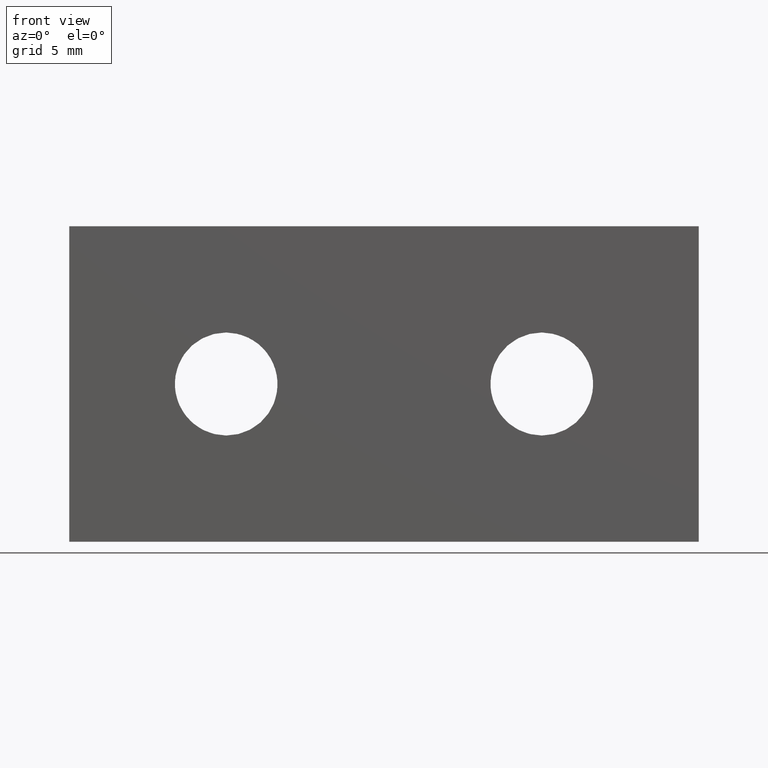
[diagram: clean part render]
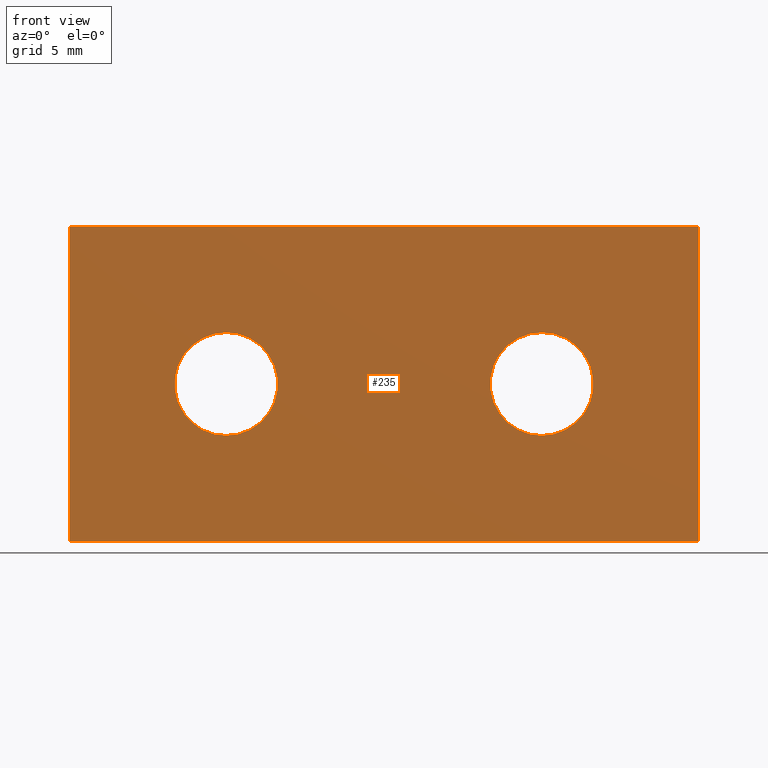
[diagram: same view with one face highlighted and labeled with its STEP entity id]
A machine part, front view. The second image highlights one B-rep face of the part: STEP entity #235.
In plain terms, the highlighted planar face has unit normal (-0, 1, 0).
Its self-contained STEP definition (entity closure, byte-faithful):
#4 = CIRCLE ( 'NONE', #272, 0.1285000000000000000 ) ;
#7 = VECTOR ( 'NONE', #101, 39.37007874015748100 ) ;
#8 = LINE ( 'NONE', #99, #7 ) ;
#10 = CIRCLE ( 'NONE', #273, 0.1285000000000000900 ) ;
#17 = VECTOR ( 'NONE', #158, 39.37007874015748100 ) ;
#59 = LINE ( 'NONE', #156, #17 ) ;
#76 = DIRECTION ( 'NONE',  ( -0.0000000000000000000, 1.000000000000000000, 0.0000000000000000000 ) ) ;
#77 = DIRECTION ( 'NONE',  ( -1.000000000000000000, -0.0000000000000000000, -0.0000000000000000000 ) ) ;
#79 = PLANE ( 'NONE',  #269 ) ;
#88 = CARTESIAN_POINT ( 'NONE',  ( -0.7850000000000001400, 0.3937007874015748300, 0.0000000000000000000 ) ) ;
#95 = DIRECTION ( 'NONE',  ( 0.0000000000000000000, -1.000000000000000000, -0.0000000000000000000 ) ) ;
#96 = VERTEX_POINT ( 'NONE', #192 ) ;
#97 = DIRECTION ( 'NONE',  ( 0.0000000000000000000, 0.0000000000000000000, 1.000000000000000000 ) ) ;
#98 = CARTESIAN_POINT ( 'NONE',  ( -0.3935000000000000700, 0.3937007874015748800, -0.3934999999999999600 ) ) ;
#99 = CARTESIAN_POINT ( 'NONE',  ( 0.7850000000000001400, 0.3937007874015748300, -2.405610610987281500 ) ) ;
#101 = DIRECTION ( 'NONE',  ( -0.0000000000000000000, -0.0000000000000000000, 1.000000000000000000 ) ) ;
#111 = DIRECTION ( 'NONE',  ( -1.000000000000000000, 0.0000000000000000000, 0.0000000000000000000 ) ) ;
#112 = DIRECTION ( 'NONE',  ( 0.0000000000000000000, -1.000000000000000000, -0.0000000000000000000 ) ) ;
#113 = DIRECTION ( 'NONE',  ( 0.0000000000000000000, 0.0000000000000000000, 1.000000000000000000 ) ) ;
#120 = DIRECTION ( 'NONE',  ( 0.0000000000000000000, -1.000000000000000000, -0.0000000000000000000 ) ) ;
#123 = DIRECTION ( 'NONE',  ( 0.0000000000000000000, -1.000000000000000000, -0.0000000000000000000 ) ) ;
#124 = DIRECTION ( 'NONE',  ( 0.0000000000000000000, 0.0000000000000000000, 1.000000000000000000 ) ) ;
#125 = CARTESIAN_POINT ( 'NONE',  ( 0.3934999999999999100, 0.3937007874015748800, -0.3935000000000000700 ) ) ;
#128 = CARTESIAN_POINT ( 'NONE',  ( -0.7850000000000001400, 0.3937007874015748300, -0.7870000000000001400 ) ) ;
#130 = CARTESIAN_POINT ( 'NONE',  ( -0.3935000000000000700, 0.3937007874015748800, -0.3934999999999999600 ) ) ;
#135 = CARTESIAN_POINT ( 'NONE',  ( 0.3934999999999999100, 0.3937007874015748800, -0.3935000000000000700 ) ) ;
#138 = DIRECTION ( 'NONE',  ( 0.0000000000000000000, 0.0000000000000000000, 1.000000000000000000 ) ) ;
#149 = VERTEX_POINT ( 'NONE', #193 ) ;
#156 = CARTESIAN_POINT ( 'NONE',  ( -0.7850000000000001400, 0.3937007874015748300, -2.405610610987281500 ) ) ;
#158 = DIRECTION ( 'NONE',  ( -0.0000000000000000000, -0.0000000000000000000, 1.000000000000000000 ) ) ;
#163 = VERTEX_POINT ( 'NONE', #191 ) ;
#165 = CARTESIAN_POINT ( 'NONE',  ( 0.7850000000000001400, 0.3937007874015748300, 0.0000000000000000000 ) ) ;
#175 = DIRECTION ( 'NONE',  ( 0.0000000000000000000, -0.0000000000000000000, 1.000000000000000000 ) ) ;
#178 = CARTESIAN_POINT ( 'NONE',  ( -0.7850000000000001400, 0.3937007874015748300, -2.405610610987281500 ) ) ;
#185 = CARTESIAN_POINT ( 'NONE',  ( 0.3934999999999999100, 0.3937007874015748800, -0.2650000000000000700 ) ) ;
#186 = CARTESIAN_POINT ( 'NONE',  ( -0.7850000000000001400, 0.3937007874015748300, 0.0000000000000000000 ) ) ;
#189 = CARTESIAN_POINT ( 'NONE',  ( -0.3935000000000000700, 0.3937007874015748800, -0.2649999999999999000 ) ) ;
#191 = CARTESIAN_POINT ( 'NONE',  ( 0.7850000000000001400, 0.3937007874015748300, -0.7870000000000001400 ) ) ;
#192 = CARTESIAN_POINT ( 'NONE',  ( -0.3935000000000000700, 0.3937007874015748800, -0.5220000000000000200 ) ) ;
#193 = CARTESIAN_POINT ( 'NONE',  ( 0.3934999999999999100, 0.3937007874015748800, -0.5220000000000000200 ) ) ;
#196 = CARTESIAN_POINT ( 'NONE',  ( -0.7850000000000001400, 0.3937007874015748300, -0.7870000000000001400 ) ) ;
#198 = VERTEX_POINT ( 'NONE', #186 ) ;
#200 = VERTEX_POINT ( 'NONE', #185 ) ;
#201 = VERTEX_POINT ( 'NONE', #189 ) ;
#202 = VERTEX_POINT ( 'NONE', #196 ) ;
#211 = VERTEX_POINT ( 'NONE', #165 ) ;
#235 = ADVANCED_FACE ( 'NONE', ( #304, #355, #356 ), #79, .F. ) ;
#236 = EDGE_CURVE ( 'NONE', #211, #198, #383, .T. ) ;
#239 = EDGE_CURVE ( 'NONE', #149, #200, #296, .T. ) ;
#244 = EDGE_CURVE ( 'NONE', #96, #201, #344, .T. ) ;
#245 = EDGE_CURVE ( 'NONE', #163, #202, #366, .T. ) ;
#249 = EDGE_CURVE ( 'NONE', #200, #149, #4, .T. ) ;
#252 = EDGE_CURVE ( 'NONE', #202, #198, #59, .T. ) ;
#255 = EDGE_CURVE ( 'NONE', #201, #96, #10, .T. ) ;
#257 = EDGE_CURVE ( 'NONE', #163, #211, #8, .T. ) ;
#269 = AXIS2_PLACEMENT_3D ( 'NONE', #178, #76, #175 ) ;
#270 = AXIS2_PLACEMENT_3D ( 'NONE', #135, #120, #138 ) ;
#271 = AXIS2_PLACEMENT_3D ( 'NONE', #130, #112, #113 ) ;
#272 = AXIS2_PLACEMENT_3D ( 'NONE', #125, #123, #124 ) ;
#273 = AXIS2_PLACEMENT_3D ( 'NONE', #98, #95, #97 ) ;
#296 = CIRCLE ( 'NONE', #270, 0.1285000000000000000 ) ;
#297 = ORIENTED_EDGE ( 'NONE', *, *, #244, .F. ) ;
#304 = FACE_BOUND ( 'NONE', #353, .T. ) ;
#305 = ORIENTED_EDGE ( 'NONE', *, *, #257, .T. ) ;
#308 = ORIENTED_EDGE ( 'NONE', *, *, #249, .F. ) ;
#310 = ORIENTED_EDGE ( 'NONE', *, *, #245, .F. ) ;
#321 = EDGE_LOOP ( 'NONE', ( #305, #362, #346, #310 ) ) ;
#344 = CIRCLE ( 'NONE', #271, 0.1285000000000000900 ) ;
#346 = ORIENTED_EDGE ( 'NONE', *, *, #252, .F. ) ;
#347 = VECTOR ( 'NONE', #111, 39.37007874015748100 ) ;
#350 = ORIENTED_EDGE ( 'NONE', *, *, #239, .F. ) ;
#353 = EDGE_LOOP ( 'NONE', ( #308, #350 ) ) ;
#355 = FACE_OUTER_BOUND ( 'NONE', #321, .T. ) ;
#356 = FACE_BOUND ( 'NONE', #359, .T. ) ;
#359 = EDGE_LOOP ( 'NONE', ( #373, #297 ) ) ;
#362 = ORIENTED_EDGE ( 'NONE', *, *, #236, .T. ) ;
#366 = LINE ( 'NONE', #128, #347 ) ;
#373 = ORIENTED_EDGE ( 'NONE', *, *, #255, .F. ) ;
#383 = LINE ( 'NONE', #88, #384 ) ;
#384 = VECTOR ( 'NONE', #77, 39.37007874015748100 ) ;